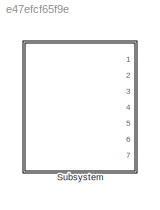
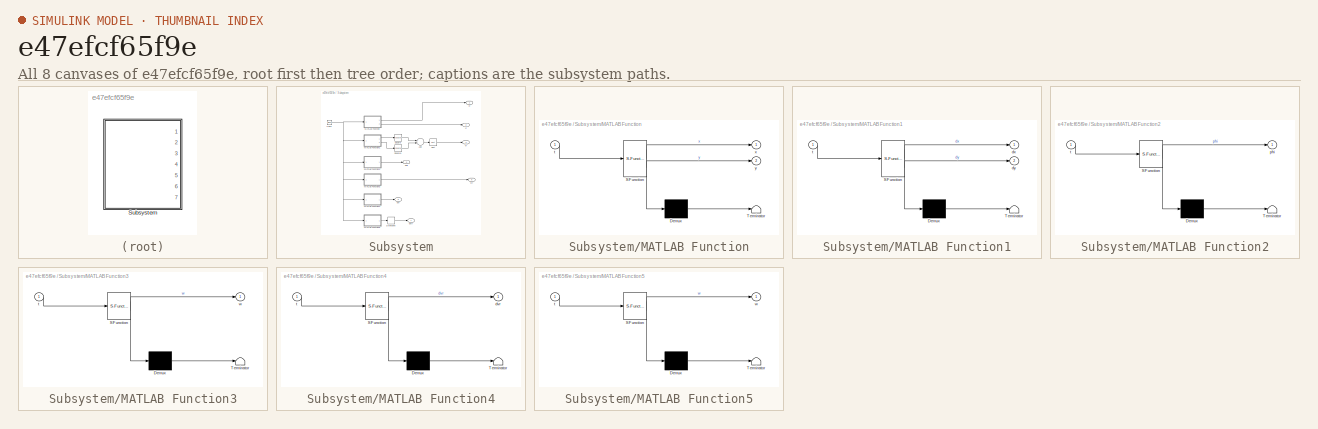
[diagram: thumbnail index - all 8 canvases of the model, root first then tree order]
MODEL slx_e47efcf65f9e
KIND model
CONFIG AbsTol = auto
CONFIG EnableMultiTasking = off
CONFIG FixedStep = 0.001
CONFIG MaxStep = auto
CONFIG MinStep = auto
CONFIG RelTol = 1e-3
CONFIG SampleTimeConstraint = Unconstrained
CONFIG Solver = FixedStepAuto
CONFIG SolverName = FixedStepAuto
CONFIG StartTime = 0.0
CONFIG StopTime = 250
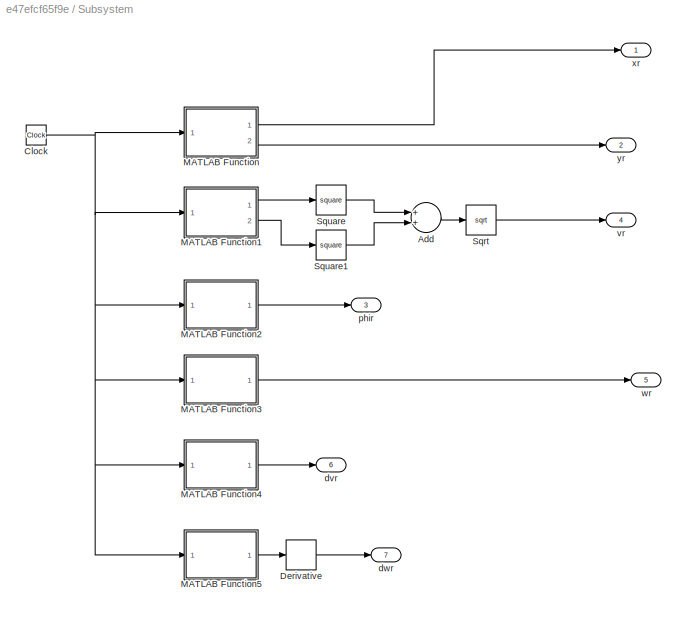
BLOCK [SubSystem] Subsystem
  Ports = [0, 7]
  RequestExecContextInheritance = off
BLOCK [Sum] Subsystem/Add
  InputSameDT = off
  OutDataTypeStr = Inherit: Inherit via internal rule
  Ports = [2, 1]
  SaturateOnIntegerOverflow = off
BLOCK [Clock] Subsystem/Clock
BLOCK [Derivative] Subsystem/Derivative
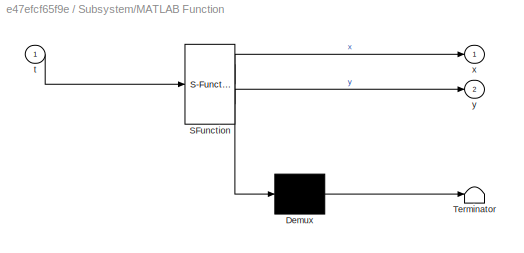
BLOCK [SubSystem] Subsystem/MATLAB Function
  ErrorFcn = Stateflow.Translate.translate
  PermitHierarchicalResolution = ExplicitOnly
  Ports = [1, 2]
  RequestExecContextInheritance = off
  SFBlockType = MATLAB Function
  TreatAsAtomicUnit = on
BLOCK [Demux] Subsystem/MATLAB Function/ Demux 
  Outputs = 1
  Ports = [1, 1]
BLOCK [S-Function] Subsystem/MATLAB Function/ SFunction 
  EnableBusSupport = on
  FunctionName = sf_sfun
  PortCounts = [1 3]
  Ports = [1, 3]
  SFcnIsStateOwnerBlock = off
  SFunctionDeploymentMode = off
  Tag = Stateflow S-Function test 2
BLOCK [Terminator] Subsystem/MATLAB Function/ Terminator 
BLOCK [Inport] Subsystem/MATLAB Function/t
  IconDisplay = Port number
BLOCK [Outport] Subsystem/MATLAB Function/x
  IconDisplay = Port number
BLOCK [Outport] Subsystem/MATLAB Function/y
  IconDisplay = Port number
  Port = 2
BLOCK [SubSystem] Subsystem/MATLAB Function1
  ErrorFcn = Stateflow.Translate.translate
  PermitHierarchicalResolution = ExplicitOnly
  Ports = [1, 2]
  RequestExecContextInheritance = off
  SFBlockType = MATLAB Function
  TreatAsAtomicUnit = on
BLOCK [Demux] Subsystem/MATLAB Function1/ Demux 
  Outputs = 1
  Ports = [1, 1]
BLOCK [S-Function] Subsystem/MATLAB Function1/ SFunction 
  EnableBusSupport = on
  FunctionName = sf_sfun
  PortCounts = [1 3]
  Ports = [1, 3]
  SFcnIsStateOwnerBlock = off
  SFunctionDeploymentMode = off
  Tag = Stateflow S-Function test 1
BLOCK [Terminator] Subsystem/MATLAB Function1/ Terminator 
BLOCK [Outport] Subsystem/MATLAB Function1/dx
  IconDisplay = Port number
BLOCK [Outport] Subsystem/MATLAB Function1/dy
  IconDisplay = Port number
  Port = 2
BLOCK [Inport] Subsystem/MATLAB Function1/t
  IconDisplay = Port number
BLOCK [SubSystem] Subsystem/MATLAB Function2
  ErrorFcn = Stateflow.Translate.translate
  PermitHierarchicalResolution = ExplicitOnly
  Ports = [1, 1]
  RequestExecContextInheritance = off
  SFBlockType = MATLAB Function
  TreatAsAtomicUnit = on
BLOCK [Demux] Subsystem/MATLAB Function2/ Demux 
  Outputs = 1
  Ports = [1, 1]
BLOCK [S-Function] Subsystem/MATLAB Function2/ SFunction 
  EnableBusSupport = on
  FunctionName = sf_sfun
  PortCounts = [1 2]
  Ports = [1, 2]
  SFcnIsStateOwnerBlock = off
  SFunctionDeploymentMode = off
  Tag = Stateflow S-Function test 3
BLOCK [Terminator] Subsystem/MATLAB Function2/ Terminator 
BLOCK [Outport] Subsystem/MATLAB Function2/phi
  IconDisplay = Port number
BLOCK [Inport] Subsystem/MATLAB Function2/t
  IconDisplay = Port number
BLOCK [SubSystem] Subsystem/MATLAB Function3
  ErrorFcn = Stateflow.Translate.translate
  PermitHierarchicalResolution = ExplicitOnly
  Ports = [1, 1]
  RequestExecContextInheritance = off
  SFBlockType = MATLAB Function
  TreatAsAtomicUnit = on
BLOCK [Demux] Subsystem/MATLAB Function3/ Demux 
  Outputs = 1
  Ports = [1, 1]
BLOCK [S-Function] Subsystem/MATLAB Function3/ SFunction 
  EnableBusSupport = on
  FunctionName = sf_sfun
  PortCounts = [1 2]
  Ports = [1, 2]
  SFcnIsStateOwnerBlock = off
  SFunctionDeploymentMode = off
  Tag = Stateflow S-Function test 4
BLOCK [Terminator] Subsystem/MATLAB Function3/ Terminator 
BLOCK [Inport] Subsystem/MATLAB Function3/t
  IconDisplay = Port number
BLOCK [Outport] Subsystem/MATLAB Function3/w
  IconDisplay = Port number
BLOCK [SubSystem] Subsystem/MATLAB Function4
  ErrorFcn = Stateflow.Translate.translate
  PermitHierarchicalResolution = ExplicitOnly
  Ports = [1, 1]
  RequestExecContextInheritance = off
  SFBlockType = MATLAB Function
  TreatAsAtomicUnit = on
BLOCK [Demux] Subsystem/MATLAB Function4/ Demux 
  Outputs = 1
  Ports = [1, 1]
BLOCK [S-Function] Subsystem/MATLAB Function4/ SFunction 
  EnableBusSupport = on
  FunctionName = sf_sfun
  PortCounts = [1 2]
  Ports = [1, 2]
  SFcnIsStateOwnerBlock = off
  SFunctionDeploymentMode = off
  Tag = Stateflow S-Function test 5
BLOCK [Terminator] Subsystem/MATLAB Function4/ Terminator 
BLOCK [Outport] Subsystem/MATLAB Function4/dvr
  IconDisplay = Port number
BLOCK [Inport] Subsystem/MATLAB Function4/t
  IconDisplay = Port number
BLOCK [SubSystem] Subsystem/MATLAB Function5
  ErrorFcn = Stateflow.Translate.translate
  PermitHierarchicalResolution = ExplicitOnly
  Ports = [1, 1]
  RequestExecContextInheritance = off
  SFBlockType = MATLAB Function
  TreatAsAtomicUnit = on
BLOCK [Demux] Subsystem/MATLAB Function5/ Demux 
  Outputs = 1
  Ports = [1, 1]
BLOCK [S-Function] Subsystem/MATLAB Function5/ SFunction 
  EnableBusSupport = on
  FunctionName = sf_sfun
  PortCounts = [1 2]
  Ports = [1, 2]
  SFcnIsStateOwnerBlock = off
  SFunctionDeploymentMode = off
  Tag = Stateflow S-Function test 6
BLOCK [Terminator] Subsystem/MATLAB Function5/ Terminator 
BLOCK [Inport] Subsystem/MATLAB Function5/t
  IconDisplay = Port number
BLOCK [Outport] Subsystem/MATLAB Function5/w
  IconDisplay = Port number
BLOCK [Sqrt] Subsystem/Sqrt
BLOCK [Math] Subsystem/Square
  Operator = square
  Ports = [1, 1]
BLOCK [Math] Subsystem/Square1
  Operator = square
  Ports = [1, 1]
BLOCK [Outport] Subsystem/dvr
  IconDisplay = Port number
  Port = 6
BLOCK [Outport] Subsystem/dwr
  IconDisplay = Port number
  Port = 7
BLOCK [Outport] Subsystem/phir
  IconDisplay = Port number
  Port = 3
BLOCK [Outport] Subsystem/vr
  IconDisplay = Port number
  Port = 4
BLOCK [Outport] Subsystem/wr
  IconDisplay = Port number
  Port = 5
BLOCK [Outport] Subsystem/xr
  IconDisplay = Port number
BLOCK [Outport] Subsystem/yr
  IconDisplay = Port number
  Port = 2
LINE Subsystem/Add:1 -> Subsystem/Sqrt:1
NET Subsystem/Clock:1 -> Subsystem/MATLAB Function1:1, Subsystem/MATLAB Function2:1, Subsystem/MATLAB Function3:1, Subsystem/MATLAB Function4:1, Subsystem/MATLAB Function5:1, Subsystem/MATLAB Function:1
LINE Subsystem/Derivative:1 -> Subsystem/dwr:1
LINE Subsystem/MATLAB Function1:1 -> Subsystem/Square:1
LINE Subsystem/MATLAB Function1:2 -> Subsystem/Square1:1
LINE Subsystem/MATLAB Function2:1 -> Subsystem/phir:1
LINE Subsystem/MATLAB Function3:1 -> Subsystem/wr:1
LINE Subsystem/MATLAB Function4:1 -> Subsystem/dvr:1
LINE Subsystem/MATLAB Function5:1 -> Subsystem/Derivative:1
LINE Subsystem/MATLAB Function:1 -> Subsystem/xr:1
LINE Subsystem/MATLAB Function:2 -> Subsystem/yr:1
LINE Subsystem/Sqrt:1 -> Subsystem/vr:1
LINE Subsystem/Square1:1 -> Subsystem/Add:2
LINE Subsystem/Square:1 -> Subsystem/Add:1
note: NET lines group one-source signal fan-out (src -> all destinations, sorted); 1:1 wires keep LINE
CHART Subsystem/MATLAB Function1 states=1 transitions=1
  STATE_LABEL 'eML_blk_kernel()'
  STATE_LABEL 'SCRIPT:\nfunction [dx,dy] = fcn(t)\ndx=0;\ndy=0;\nif t<50\n    dx=-2*pi/25*sin(pi/25*t);\n    dy=2*pi/25*cos(pi/25*t);\nelseif t<75\n    dx=2*2*pi/25*sin(2*pi/25*(t-50));\n    dy=2*2*pi/25*cos(2*pi/25*(t-50));\nelseif t<100\n    dx=-2*pi/25*sin(pi/25*(t-75));\n    dy=2*pi/25*cos(pi/25*(t-75));\nelseif t<130\n    dx=-0.2;\n    dy=0;\nelseif t<150\n    dx=-0.5;\n    dy=pi/10*cos(pi/10*(t-130));\nelse \n    dx=10*pi/100...<+63ch>'
CHART Subsystem/MATLAB Function states=1 transitions=1
  STATE_LABEL 'eML_blk_kernel()'
  STATE_LABEL 'SCRIPT:\nfunction [x,y] = fcn(t)\nx=0;\ny=0;\nif t<50\n    x=2*cos(pi/25*t);\n    y=2*sin(pi/25*t);\nelseif t<75\n    x=4-2*cos(2*pi/25*(t-50));\n    y=2*sin(2*pi/25*(t-50));\nelseif t<100\n    x=2*cos(pi/25*(t-75));\n    y=2*sin(pi/25*(t-75));\nelseif t<130\n    x=-2-0.2*(t-100);\n    y=0;\nelseif t<150\n    x=-8-0.5*(t-130);\n    y=sin(pi/10*(t-130));\nelse \n    x=-8-10*cos(pi/100*(t-150));\n    y=10*sin(pi/100*(t-...<+10ch>'
CHART Subsystem/MATLAB Function2 states=1 transitions=1
  STATE_LABEL 'eML_blk_kernel()'
  STATE_LABEL 'SCRIPT:\nfunction phi = fcn(t)\nif t<50\n    phi=pi/2+pi/25*t;\nelseif t<75\n    phi=5*pi/2-2*pi/25*(t-50);\nelseif t<100\n    phi=pi/2+pi/25*(t-75);\nelseif t<130\n    phi=pi;\nelseif t<150\n    phi=pi+atan(pi/10*cos(pi/10*(t-130))/-0.5);\nelse \n    phi=pi/2-pi/100*(t-150);\nend\nend'
CHART Subsystem/MATLAB Function3 states=1 transitions=1
  STATE_LABEL 'eML_blk_kernel()'
  STATE_LABEL 'SCRIPT:\nfunction w = fcn(t)\nif t<50\n    w=pi/25;\nelseif t<75\n    w=-2*pi/25;\nelseif t<100\n    w=pi/25;\nelseif t<130\n    w=0;\nelseif t<150\n    w=1/(1+(pi/10*cos(pi/10*(t-130))/-0.5)^2)*pi/10/0.5*sin(pi/10*(t-130))*pi/10;\nelse \n    w=-pi/100;\nend\nend'
CHART Subsystem/MATLAB Function4 states=1 transitions=1
  STATE_LABEL 'eML_blk_kernel()'
  STATE_LABEL 'SCRIPT:\nfunction dvr = fcn(t)\nif t<50\n    dvr=0;\nelseif t<75\n    dvr=0;\nelseif t<100\n    dvr=0;\nelseif t<130\n    dvr=0;\nelseif t<150\n    dvr=1/sqrt(0.25+(pi/10*cos(pi/10*(t-130)))^2)/2*2*(pi/10*cos(pi/10*(t-130)))*-pi/10*pi/10*sin(pi/10*(t-130));\nelse \n    dvr=0;\nend\nend'
CHART Subsystem/MATLAB Function5 states=1 transitions=1
  STATE_LABEL 'eML_blk_kernel()'
  STATE_LABEL 'SCRIPT:\nfunction w = fcn(t)\nif t<50\n    w=0;\nelseif t<75\n    w=0;\nelseif t<100\n    w=0;\nelseif t<130\n    w=0;\nelseif t<150\n    w=1/(1+(pi/10*cos(pi/10*(t-130))/-0.5)^2)*pi/10/0.5*sin(pi/10*(t-130))*pi/10;\nelse \n    w=0;\nend\nend'
